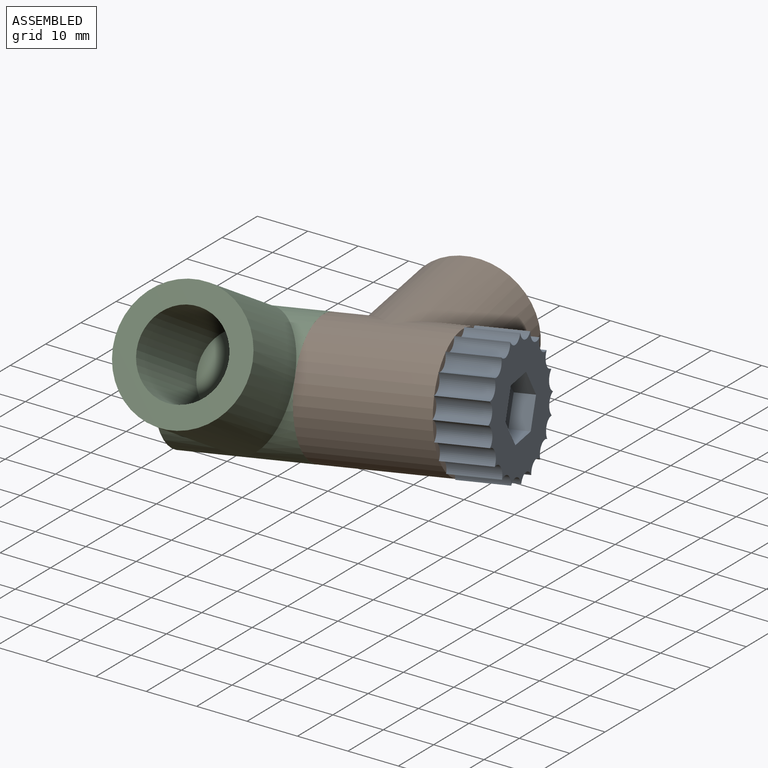
[diagram: assembled view]
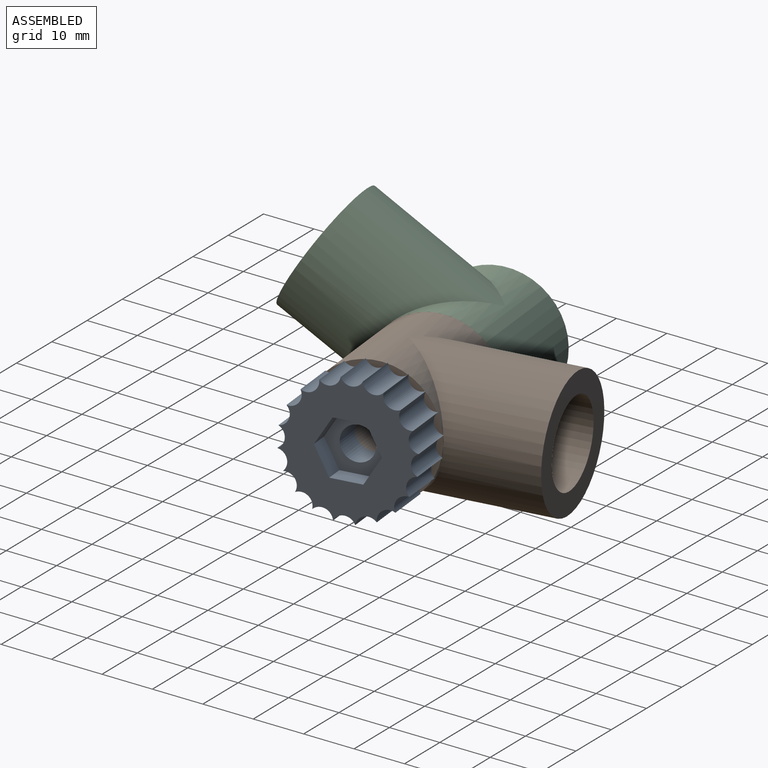
[diagram: assembled view, second angle]
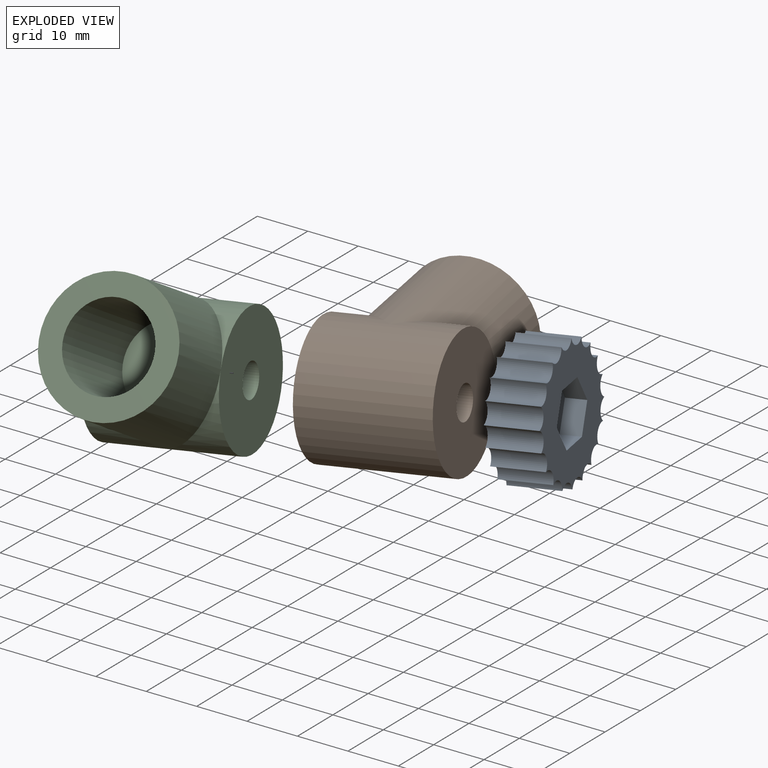
[diagram: exploded view]
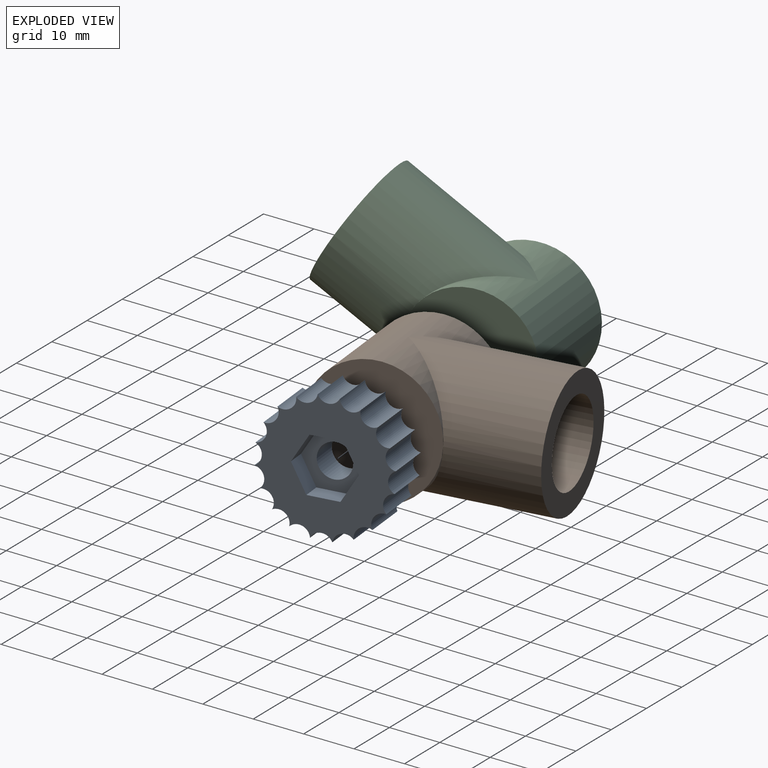
[diagram: exploded view, second angle]
ASSEMBLY  parts=3 mates=2
PART A: 30 faces, bbox 25x25x10 mm
  f0: plane 25x25mm, normal (0,0,-1), area 328.5mm2, adj f1,f2,f3,f4,f5,f6,f7,f8
  f1: cylinder r=2.19mm len=10mm, axis (0,0,-1), area 49.4mm2, adj f0,f2,f20,f22
  f2: cylinder r=2.19mm len=10mm, axis (0,0,-1), area 49.4mm2, adj f0,f1,f3,f22
  f3: cylinder r=2.19mm len=10mm, axis (0,0,-1), area 49.4mm2, adj f0,f2,f4,f22
  f4: cylinder r=2.19mm len=10mm, axis (0,0,-1), area 49.4mm2, adj f0,f3,f5,f22
  f5: cylinder r=2.19mm len=10mm, axis (0,0,-1), area 49.4mm2, adj f0,f4,f6,f22
  f6: cylinder r=2.19mm len=10mm, axis (0,0,-1), area 49.4mm2, adj f0,f5,f7,f22
  f7: cylinder r=2.19mm len=10mm, axis (0,0,-1), area 49.4mm2, adj f0,f6,f8,f22
  f8: cylinder r=2.19mm len=10mm, axis (0,0,-1), area 49.4mm2, adj f0,f7,f9,f22
  f9: cylinder r=2.19mm len=10mm, axis (0,0,-1), area 49.4mm2, adj f0,f8,f10,f22
  f10: cylinder r=2.19mm len=10mm, axis (0,0,-1), area 49.4mm2, adj f0,f9,f11,f22
  f11: cylinder r=2.19mm len=10mm, axis (0,0,-1), area 49.4mm2, adj f0,f10,f12,f22
  f12: cylinder r=2.19mm len=10mm, axis (0,0,-1), area 49.4mm2, adj f0,f11,f13,f22
  f13: cylinder r=2.19mm len=10mm, axis (0,0,-1), area 49.4mm2, adj f0,f12,f14,f22
  f14: cylinder r=2.19mm len=10mm, axis (0,0,-1), area 49.4mm2, adj f0,f13,f15,f22
  f15: cylinder r=2.19mm len=10mm, axis (0,0,-1), area 49.4mm2, adj f0,f14,f16,f22
  f16: cylinder r=2.19mm len=10mm, axis (0,0,-1), area 49.4mm2, adj f0,f15,f17,f22
  f17: cylinder r=2.19mm len=10mm, axis (0,0,-1), area 49.4mm2, adj f0,f16,f18,f22
  f18: cylinder r=2.19mm len=10mm, axis (0,0,-1), area 49.4mm2, adj f0,f17,f19,f22
  f19: cylinder r=2.19mm len=10mm, axis (0,0,-1), area 49.4mm2, adj f0,f18,f20,f22
  f20: cylinder r=2.19mm len=10mm, axis (0,0,-1), area 49.4mm2, adj f0,f1,f19,f22
  f21: cylinder r=3.25mm len=6.5mm, axis (0,0,-1), area 122.5mm2, adj f22,f29
  f22: plane 25x25mm, normal (0,0,1), area 390.8mm2, adj f1,f2,f3,f4,f5,f6,f7,f8
  f23: plane 6.06x4mm, normal (-1,0,0), area 24.2mm2, adj f0,f24,f28,f29
  f24: plane 5.25x4mm, normal (-0.5,-0.87,0), area 24.2mm2, adj f0,f23,f25,f29
  f25: plane 5.25x4mm, normal (0.5,-0.87,0), area 24.2mm2, adj f0,f24,f26,f29
  f26: plane 6.06x4mm, normal (1,0,0), area 24.2mm2, adj f0,f25,f27,f29
  f27: plane 5.25x4mm, normal (0.5,0.87,0), area 24.2mm2, adj f0,f26,f28,f29
  f28: plane 5.25x4mm, normal (-0.5,0.87,0), area 24.2mm2, adj f0,f23,f27,f29
  f29: plane 12.12x10.5mm, normal (0,0,-1), area 62.3mm2, adj f21,f23,f24,f25,f26,f27,f28
PART B: 8 faces, bbox 25x42.5x25 mm
  f0: cylinder r=12.5mm len=25mm, axis (0,0,-1), area 1338.5mm2, adj f1,f2,f3
  f1: plane 25x25mm, normal (0,0,1), area 457.7mm2, adj f0,f5
  f2: plane 25x25mm, normal (0,0,-1), area 457.7mm2, adj f0,f5
  f3: cylinder r=12.5mm len=30mm, axis (0,1,0), area 1731.2mm2, adj f0,f4
  f4: plane 25x25mm, normal (0,-1,0), area 277mm2, adj f3,f6
  f5: cylinder r=3.25mm len=25mm, axis (0,0,-1), area 510.5mm2, adj f1,f2
  f6: cylinder r=8.25mm len=25mm, axis (0,1,0), area 1295.9mm2, adj f4,f7
  f7: plane 16.5x16.5mm, normal (0,-1,0), area 213.8mm2, adj f6
PART C: 15 faces, bbox 25x42.5x25 mm
  f0: plane 25x25mm, normal (0,0,-1), area 395.4mm2, adj f1,f7,f8,f9,f10,f11,f12
  f1: cylinder r=12.5mm len=25mm, axis (0,0,-1), area 1338.5mm2, adj f0,f2,f3
  f2: plane 25x25mm, normal (0,0,1), area 457.7mm2, adj f1,f14
  f3: cylinder r=12.5mm len=30mm, axis (0,1,0), area 1731.2mm2, adj f1,f4
  f4: plane 25x25mm, normal (0,-1,0), area 277mm2, adj f3,f5
  f5: cylinder r=8.25mm len=25mm, axis (0,1,0), area 1295.9mm2, adj f4,f6
  f6: plane 16.5x16.5mm, normal (0,-1,0), area 213.8mm2, adj f5
  f7: plane 5.25x4mm, normal (-0.87,-0.5,0), area 24.2mm2, adj f0,f8,f12,f13
  f8: plane 6.06x4mm, normal (0,-1,0), area 24.2mm2, adj f0,f7,f9,f13
  f9: plane 5.25x4mm, normal (0.87,-0.5,0), area 24.2mm2, adj f0,f8,f10,f13
  f10: plane 5.25x4mm, normal (0.87,0.5,0), area 24.2mm2, adj f0,f9,f11,f13
  f11: plane 6.06x4mm, normal (0,1,0), area 24.2mm2, adj f0,f10,f12,f13
  f12: plane 5.25x4mm, normal (-0.87,0.5,0), area 24.2mm2, adj f0,f7,f11,f13
  f13: plane 12.12x10.5mm, normal (0,0,-1), area 62.3mm2, adj f7,f8,f9,f10,f11,f12,f14
  f14: cylinder r=3.25mm len=21mm, axis (0,0,-1), area 428.8mm2, adj f2,f13
PLACE A rot(axis=(0.74,0.06,-0.67),172deg) t=(2.36,38.43,24.99)mm
PLACE B rot(axis=(0.74,0.06,-0.67),172deg) t=(-7.42,36.55,24.14)mm
PLACE C rot(axis=(-0.35,0.92,-0.19),87deg) t=(-56.35,27.18,19.86)mm
MATE revolute B.f0 <-> C.f14  axis (-0.98,-0.19,-0.09) through (-31.89,31.87,22)mm
MATE revolute A.f21 <-> B.f0  axis (-0.98,-0.19,-0.09) through (-7.42,36.55,24.14)mm
